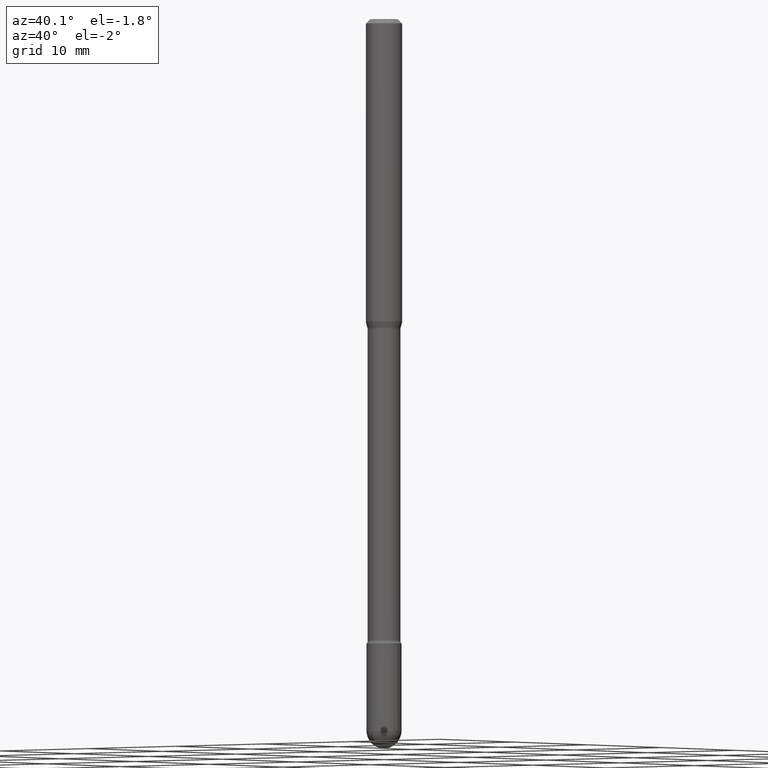
[diagram: clean part render]
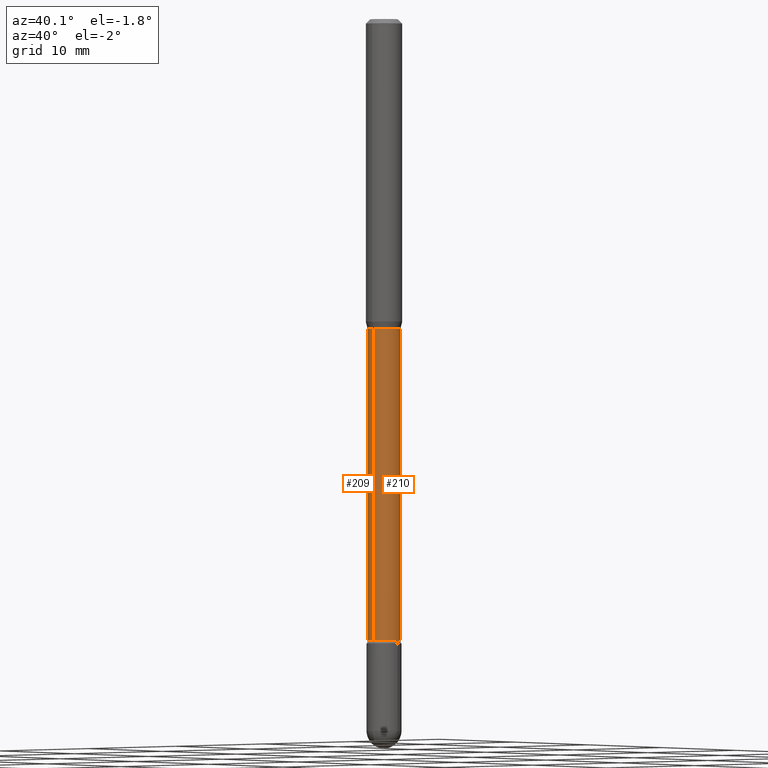
[diagram: same view with one multi-face feature highlighted, each face labeled with its STEP entity id]
A machine part, auxiliary view. The highlighted faces form ONE feature: a constant-radius fillet chain: 2 tangent blend faces with common blend radius 1.4326 mm. The faces share edges in the B-rep.
Their STEP definitions:
[1] entity #210 (Cylinder):
#15 = LINE ( 'NONE', #272, #294 ) ;
#35 = DIRECTION ( 'NONE',  ( -2.445553399575097308E-29, 3.491360196293965350E-15, 1.000000000000000000 ) ) ;
#54 = EDGE_CURVE ( 'NONE', #498, #264, #483, .T. ) ;
#56 = CARTESIAN_POINT ( 'NONE',  ( 4.007461029687488566E-16, 0.05639999999999628644, -1.061974787463811021 ) ) ;
#62 = AXIS2_PLACEMENT_3D ( 'NONE', #146, #284, #547 ) ;
#72 = DIRECTION ( 'NONE',  ( -2.445553399575097308E-29, 3.491360196293965350E-15, 1.000000000000000000 ) ) ;
#73 = DIRECTION ( 'NONE',  ( -2.445553399575097308E-29, 3.491360196293965350E-15, 1.000000000000000000 ) ) ;
#84 = ORIENTED_EDGE ( 'NONE', *, *, #94, .T. ) ;
#94 = EDGE_CURVE ( 'NONE', #264, #402, #374, .T. ) ;
#116 = CARTESIAN_POINT ( 'NONE',  ( -3.938390950214793722E-16, -0.05640000000000369718, -1.061974787463810799 ) ) ;
#145 = VERTEX_POINT ( 'NONE', #116 ) ;
#146 = CARTESIAN_POINT ( 'NONE',  ( -1.169113584055446105E-44, 1.669184350826100908E-30, 4.780733988912460139E-16 ) ) ;
#152 = EDGE_CURVE ( 'NONE', #145, #402, #369, .T. ) ;
#163 = DIRECTION ( 'NONE',  ( -6.982962677686265133E-15, -1.000000000000000000, 4.843702116425991330E-15 ) ) ;
#192 = AXIS2_PLACEMENT_3D ( 'NONE', #205, #72, #560 ) ;
#197 = ORIENTED_EDGE ( 'NONE', *, *, #497, .F. ) ;
#205 = CARTESIAN_POINT ( 'NONE',  ( 2.597116051745163979E-29, -3.707736502418893280E-15, -1.061974787463811021 ) ) ;
#210 = ADVANCED_FACE ( 'NONE', ( #367 ), #543, .T. ) ;
#225 = DIRECTION ( 'NONE',  ( -2.445553399575097308E-29, 3.491360196293965350E-15, 1.000000000000000000 ) ) ;
#264 = VERTEX_POINT ( 'NONE', #380 ) ;
#270 = AXIS2_PLACEMENT_3D ( 'NONE', #330, #73, #163 ) ;
#272 = CARTESIAN_POINT ( 'NONE',  ( -3.938390950215056511E-16, -0.05640000000000004038, 6.749861139622258280E-16 ) ) ;
#284 = DIRECTION ( 'NONE',  ( -2.445553399575097308E-29, 3.491360196293965350E-15, 1.000000000000000000 ) ) ;
#292 = VECTOR ( 'NONE', #35, 39.37007874015748143 ) ;
#294 = VECTOR ( 'NONE', #225, 39.37007874015748143 ) ;
#330 = CARTESIAN_POINT ( 'NONE',  ( 5.209642951404224994E-29, -7.437474086886154387E-15, -2.130251153914437090 ) ) ;
#356 = ORIENTED_EDGE ( 'NONE', *, *, #54, .T. ) ;
#367 = FACE_OUTER_BOUND ( 'NONE', #523, .T. ) ;
#369 = CIRCLE ( 'NONE', #192, 0.05639999999999999181 ) ;
#371 = ORIENTED_EDGE ( 'NONE', *, *, #152, .F. ) ;
#374 = LINE ( 'NONE', #551, #292 ) ;
#380 = CARTESIAN_POINT ( 'NONE',  ( 4.135358722124309276E-16, 0.05639999999999264352, -2.130251153914437090 ) ) ;
#389 = CARTESIAN_POINT ( 'NONE',  ( -3.938390950214538328E-16, -0.05640000000000751357, -2.130251153914436646 ) ) ;
#402 = VERTEX_POINT ( 'NONE', #56 ) ;
#483 = CIRCLE ( 'NONE', #270, 0.05640000000000008201 ) ;
#497 = EDGE_CURVE ( 'NONE', #498, #145, #15, .T. ) ;
#498 = VERTEX_POINT ( 'NONE', #389 ) ;
#523 = EDGE_LOOP ( 'NONE', ( #356, #84, #371, #197 ) ) ;
#543 = CYLINDRICAL_SURFACE ( 'NONE', #62, 0.05640000000000004038 ) ;
#547 = DIRECTION ( 'NONE',  ( -6.982962677686265133E-15, -1.000000000000000000, 3.491360196293964561E-15 ) ) ;
#551 = CARTESIAN_POINT ( 'NONE',  ( 4.007461029686966931E-16, 0.05640000000000004038, 2.811606838202663478E-16 ) ) ;
#560 = DIRECTION ( 'NONE',  ( -6.982962677686265922E-15, -1.000000000000000000, 2.421851058212999609E-15 ) ) ;
[2] entity #209 (Cylinder):
#9 = DIRECTION ( 'NONE',  ( -2.445553399575097308E-29, 3.491360196293965350E-15, 1.000000000000000000 ) ) ;
#15 = LINE ( 'NONE', #272, #294 ) ;
#35 = DIRECTION ( 'NONE',  ( -2.445553399575097308E-29, 3.491360196293965350E-15, 1.000000000000000000 ) ) ;
#56 = CARTESIAN_POINT ( 'NONE',  ( 4.007461029687488566E-16, 0.05639999999999628644, -1.061974787463811021 ) ) ;
#75 = CIRCLE ( 'NONE', #481, 0.05640000000000008201 ) ;
#94 = EDGE_CURVE ( 'NONE', #264, #402, #374, .T. ) ;
#102 = ORIENTED_EDGE ( 'NONE', *, *, #497, .T. ) ;
#104 = FACE_OUTER_BOUND ( 'NONE', #229, .T. ) ;
#116 = CARTESIAN_POINT ( 'NONE',  ( -3.938390950214793722E-16, -0.05640000000000369718, -1.061974787463810799 ) ) ;
#123 = AXIS2_PLACEMENT_3D ( 'NONE', #189, #9, #182 ) ;
#145 = VERTEX_POINT ( 'NONE', #116 ) ;
#173 = DIRECTION ( 'NONE',  ( -6.982962677686265133E-15, -1.000000000000000000, 4.843702116425991330E-15 ) ) ;
#180 = AXIS2_PLACEMENT_3D ( 'NONE', #325, #449, #199 ) ;
#182 = DIRECTION ( 'NONE',  ( -6.982962677686265922E-15, -1.000000000000000000, 2.421851058212999609E-15 ) ) ;
#189 = CARTESIAN_POINT ( 'NONE',  ( 2.597116051745163979E-29, -3.707736502418893280E-15, -1.061974787463811021 ) ) ;
#190 = ORIENTED_EDGE ( 'NONE', *, *, #94, .F. ) ;
#194 = CIRCLE ( 'NONE', #123, 0.05639999999999999181 ) ;
#199 = DIRECTION ( 'NONE',  ( -6.982962677686265133E-15, -1.000000000000000000, 3.491360196293964561E-15 ) ) ;
#209 = ADVANCED_FACE ( 'NONE', ( #104 ), #444, .T. ) ;
#225 = DIRECTION ( 'NONE',  ( -2.445553399575097308E-29, 3.491360196293965350E-15, 1.000000000000000000 ) ) ;
#226 = ORIENTED_EDGE ( 'NONE', *, *, #502, .F. ) ;
#229 = EDGE_LOOP ( 'NONE', ( #190, #260, #102, #226 ) ) ;
#260 = ORIENTED_EDGE ( 'NONE', *, *, #293, .T. ) ;
#264 = VERTEX_POINT ( 'NONE', #380 ) ;
#272 = CARTESIAN_POINT ( 'NONE',  ( -3.938390950215056511E-16, -0.05640000000000004038, 6.749861139622258280E-16 ) ) ;
#292 = VECTOR ( 'NONE', #35, 39.37007874015748143 ) ;
#293 = EDGE_CURVE ( 'NONE', #264, #498, #75, .T. ) ;
#294 = VECTOR ( 'NONE', #225, 39.37007874015748143 ) ;
#325 = CARTESIAN_POINT ( 'NONE',  ( -1.169113584055446105E-44, 1.669184350826100908E-30, 4.780733988912460139E-16 ) ) ;
#374 = LINE ( 'NONE', #551, #292 ) ;
#380 = CARTESIAN_POINT ( 'NONE',  ( 4.135358722124309276E-16, 0.05639999999999264352, -2.130251153914437090 ) ) ;
#389 = CARTESIAN_POINT ( 'NONE',  ( -3.938390950214538328E-16, -0.05640000000000751357, -2.130251153914436646 ) ) ;
#402 = VERTEX_POINT ( 'NONE', #56 ) ;
#444 = CYLINDRICAL_SURFACE ( 'NONE', #180, 0.05640000000000004038 ) ;
#449 = DIRECTION ( 'NONE',  ( -2.445553399575097308E-29, 3.491360196293965350E-15, 1.000000000000000000 ) ) ;
#470 = CARTESIAN_POINT ( 'NONE',  ( 5.209642951404224994E-29, -7.437474086886154387E-15, -2.130251153914437090 ) ) ;
#481 = AXIS2_PLACEMENT_3D ( 'NONE', #470, #564, #173 ) ;
#497 = EDGE_CURVE ( 'NONE', #498, #145, #15, .T. ) ;
#498 = VERTEX_POINT ( 'NONE', #389 ) ;
#502 = EDGE_CURVE ( 'NONE', #402, #145, #194, .T. ) ;
#551 = CARTESIAN_POINT ( 'NONE',  ( 4.007461029686966931E-16, 0.05640000000000004038, 2.811606838202663478E-16 ) ) ;
#564 = DIRECTION ( 'NONE',  ( -2.445553399575097308E-29, 3.491360196293965350E-15, 1.000000000000000000 ) ) ;